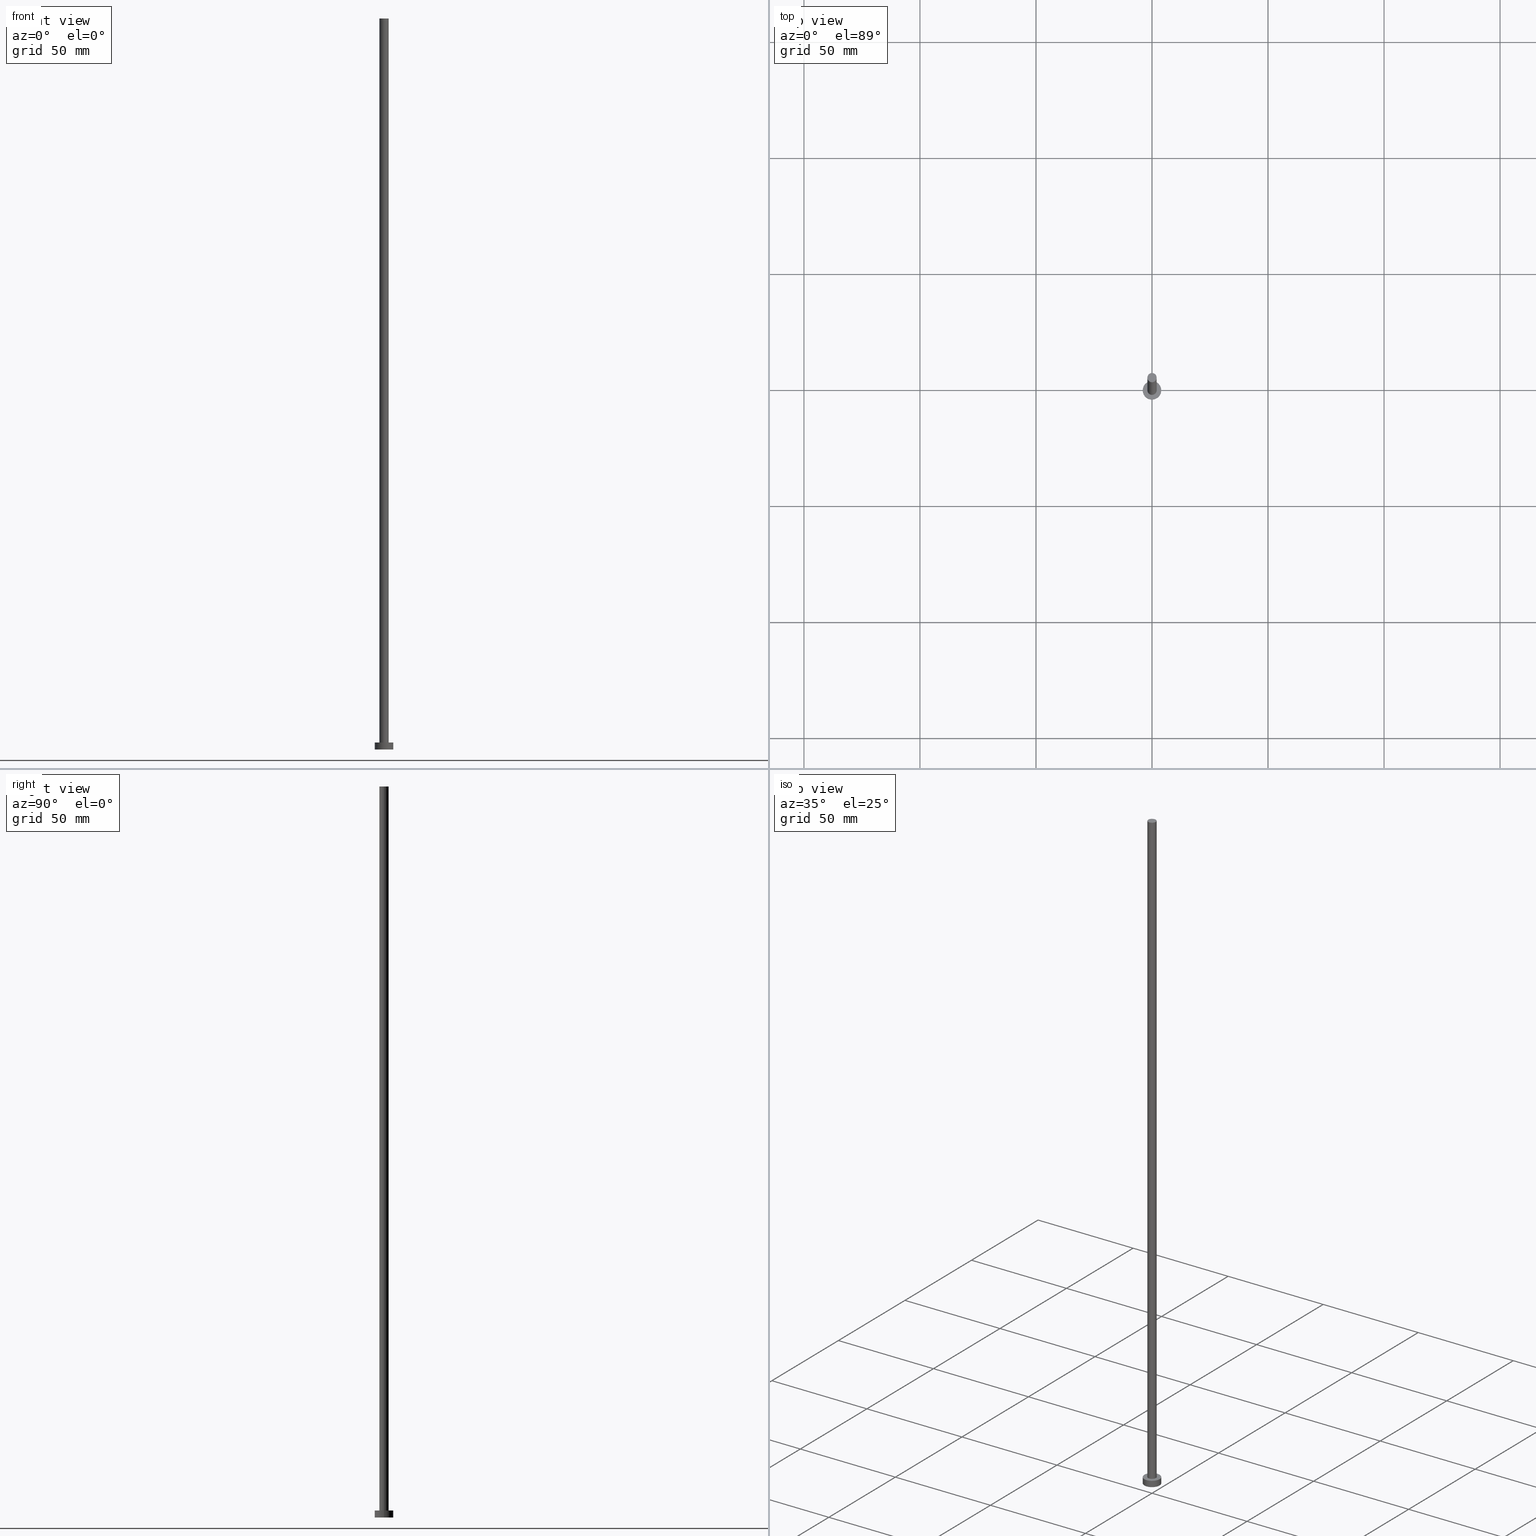
[diagram: canonical four-view strip — front | top / right | iso, engineering-drawing reading convention]
A machine part, canonical four-view strip (front | top / right | iso — engineering-drawing reading convention). The complete STEP part file that produces these views, byte-faithful:
ISO-10303-21;
HEADER;
FILE_DESCRIPTION (( 'STEP AP203' ),
    '1' );
FILE_NAME ('39f9.STEP',
    '2023-02-13T16:09:48',
    ( '' ),
    ( '' ),
    'SwSTEP 2.0',
    'SolidWorks 2019',
    '' );
FILE_SCHEMA (( 'CONFIG_CONTROL_DESIGN' ));
ENDSEC;

DATA;
#1 = CALENDAR_DATE ( 2023, 13, 2 ) ;
#2 = CARTESIAN_POINT ( 'NONE',  ( 0.000000000000000000, 0.000000000000000000, 3.000000000000000000 ) ) ;
#3 = PERSON_AND_ORGANIZATION ( #24, #228 ) ;
#4 = CARTESIAN_POINT ( 'NONE',  ( 0.000000000000000000, 0.000000000000000000, 3.000000000000000000 ) ) ;
#5 = DIRECTION ( 'NONE',  ( 0.000000000000000000, 0.000000000000000000, 1.000000000000000000 ) ) ;
#6 = APPROVAL ( #168, 'NEUR�EN�' ) ;
#7 = CARTESIAN_POINT ( 'NONE',  ( 0.000000000000000000, 0.000000000000000000, 3.000000000000000000 ) ) ;
#8 = CARTESIAN_POINT ( 'NONE',  ( 0.000000000000000000, 0.000000000000000000, 315.0000000000000000 ) ) ;
#9 = EDGE_CURVE ( 'NONE', #112, #52, #66, .T. ) ;
#10 = DIRECTION ( 'NONE',  ( 1.000000000000000000, 0.000000000000000000, -0.000000000000000000 ) ) ;
#11 = CALENDAR_DATE ( 2023, 13, 2 ) ;
#12 = VECTOR ( 'NONE', #60, 1000.000000000000000 ) ;
#13 = APPLICATION_PROTOCOL_DEFINITION ( 'international standard', 'config_control_design', 1994, #145 ) ;
#14 = EDGE_LOOP ( 'NONE', ( #111, #196, #132, #188 ) ) ;
#15 = EDGE_CURVE ( 'NONE', #247, #90, #146, .T. ) ;
#16 = PERSON_AND_ORGANIZATION ( #24, #228 ) ;
#17 = CARTESIAN_POINT ( 'NONE',  ( 0.000000000000000000, 0.000000000000000000, 315.0000000000000000 ) ) ;
#18 = APPROVAL_ROLE ( '' ) ;
#19 = EDGE_CURVE ( 'NONE', #83, #247, #175, .T. ) ;
#20 = PLANE ( 'NONE',  #187 ) ;
#21 = CARTESIAN_POINT ( 'NONE',  ( 2.000000000000000000, 2.449293598294706414E-16, 315.0000000000000000 ) ) ;
#22 = DIRECTION ( 'NONE',  ( -0.000000000000000000, -0.000000000000000000, -1.000000000000000000 ) ) ;
#23 = AXIS2_PLACEMENT_3D ( 'NONE', #8, #162, #101 ) ;
#24 = PERSON ( 'NEUR�EN�', 'NEUR�EN�', 'NEUR�EN�', ('NEUR�EN�'), ('NEUR�EN�'), ('NEUR�EN�') ) ;
#25 = DIRECTION ( 'NONE',  ( -0.000000000000000000, -0.000000000000000000, -1.000000000000000000 ) ) ;
#26 = DIRECTION ( 'NONE',  ( -1.000000000000000000, 0.000000000000000000, 0.000000000000000000 ) ) ;
#27 = FACE_OUTER_BOUND ( 'NONE', #157, .T. ) ;
#28 = CC_DESIGN_PERSON_AND_ORGANIZATION_ASSIGNMENT ( #166, #51, ( #124 ) ) ;
#29 = AXIS2_PLACEMENT_3D ( 'NONE', #154, #156, #63 ) ;
#30 = DATE_AND_TIME ( #48, #50 ) ;
#31 = COORDINATED_UNIVERSAL_TIME_OFFSET ( 1, 0, .AHEAD. ) ;
#32 = APPLICATION_PROTOCOL_DEFINITION ( 'international standard', 'config_control_design', 1994, #43 ) ;
#33 = EDGE_CURVE ( 'NONE', #112, #113, #216, .T. ) ;
#34 = CALENDAR_DATE ( 2023, 13, 2 ) ;
#35 = CIRCLE ( 'NONE', #180, 4.000000000000000000 ) ;
#36 = CARTESIAN_POINT ( 'NONE',  ( -2.000000000000000000, 0.000000000000000000, 3.000000000000000000 ) ) ;
#37 = SECURITY_CLASSIFICATION ( '', '', #136 ) ;
#38 = COORDINATED_UNIVERSAL_TIME_OFFSET ( 1, 0, .AHEAD. ) ;
#39 = ORIENTED_EDGE ( 'NONE', *, *, #9, .T. ) ;
#40 = CYLINDRICAL_SURFACE ( 'NONE', #95, 4.000000000000000000 ) ;
#41 = CC_DESIGN_PERSON_AND_ORGANIZATION_ASSIGNMENT ( #177, #133, ( #119 ) ) ;
#42 = CIRCLE ( 'NONE', #204, 2.000000000000000000 ) ;
#43 = APPLICATION_CONTEXT ( 'configuration controlled 3d designs of mechanical parts and assemblies' ) ;
#44 = AXIS2_PLACEMENT_3D ( 'NONE', #17, #194, #215 ) ;
#45 = LOCAL_TIME ( 17, 9, 48.00000000000000000, #87 ) ;
#46 = CARTESIAN_POINT ( 'NONE',  ( 0.000000000000000000, 0.000000000000000000, 315.0000000000000000 ) ) ;
#47 = PRODUCT ( '39f9', '39f9', '', ( #105 ) ) ;
#48 = CALENDAR_DATE ( 2023, 13, 2 ) ;
#49 = PERSON_AND_ORGANIZATION ( #24, #228 ) ;
#50 = LOCAL_TIME ( 17, 9, 48.00000000000000000, #128 ) ;
#51 = PERSON_AND_ORGANIZATION_ROLE ( 'creator' ) ;
#52 = VERTEX_POINT ( 'NONE', #159 ) ;
#53 = APPROVAL_STATUS ( 'not_yet_approved' ) ;
#54 = CIRCLE ( 'NONE', #183, 4.000000000000000000 ) ;
#55 = ORIENTED_EDGE ( 'NONE', *, *, #57, .T. ) ;
#56 = APPROVAL_PERSON_ORGANIZATION ( #16, #84, #226 ) ;
#57 = EDGE_CURVE ( 'NONE', #113, #149, #35, .T. ) ;
#58 = DIRECTION ( 'NONE',  ( 1.000000000000000000, 0.000000000000000000, 0.000000000000000000 ) ) ;
#59 = FACE_OUTER_BOUND ( 'NONE', #233, .T. ) ;
#60 = DIRECTION ( 'NONE',  ( -0.000000000000000000, -0.000000000000000000, -1.000000000000000000 ) ) ;
#61 = SHAPE_DEFINITION_REPRESENTATION ( #103, #121 ) ;
#62 = DIRECTION ( 'NONE',  ( -0.000000000000000000, -0.000000000000000000, -1.000000000000000000 ) ) ;
#63 = DIRECTION ( 'NONE',  ( 1.000000000000000000, 0.000000000000000000, 0.000000000000000000 ) ) ;
#64 = FACE_OUTER_BOUND ( 'NONE', #178, .T. ) ;
#65 = CC_DESIGN_DATE_AND_TIME_ASSIGNMENT ( #77, #234, ( #37 ) ) ;
#66 = CIRCLE ( 'NONE', #192, 4.000000000000000000 ) ;
#67 = APPROVAL_PERSON_ORGANIZATION ( #72, #6, #222 ) ;
#68 = FACE_OUTER_BOUND ( 'NONE', #14, .T. ) ;
#69 = DATE_AND_TIME ( #242, #45 ) ;
#70 = CC_DESIGN_PERSON_AND_ORGANIZATION_ASSIGNMENT ( #172, #210, ( #37 ) ) ;
#71 = ORIENTED_EDGE ( 'NONE', *, *, #57, .F. ) ;
#72 = PERSON_AND_ORGANIZATION ( #24, #228 ) ;
#73 = CARTESIAN_POINT ( 'NONE',  ( 2.000000000000000000, 2.449293598294706414E-16, 3.000000000000000000 ) ) ;
#74 =( LENGTH_UNIT ( ) NAMED_UNIT ( * ) SI_UNIT ( .MILLI., .METRE. ) );
#75 = EDGE_CURVE ( 'NONE', #90, #247, #96, .T. ) ;
#76 = DIRECTION ( 'NONE',  ( 0.000000000000000000, 0.000000000000000000, 1.000000000000000000 ) ) ;
#77 = DATE_AND_TIME ( #34, #182 ) ;
#78 = ORIENTED_EDGE ( 'NONE', *, *, #75, .F. ) ;
#79 = CC_DESIGN_PERSON_AND_ORGANIZATION_ASSIGNMENT ( #185, #208, ( #47 ) ) ;
#80 = APPROVAL_DATE_TIME ( #253, #181 ) ;
#81 = DIRECTION ( 'NONE',  ( 1.000000000000000000, 0.000000000000000000, 0.000000000000000000 ) ) ;
#82 = AXIS2_PLACEMENT_3D ( 'NONE', #225, #150, #206 ) ;
#83 = VERTEX_POINT ( 'NONE', #21 ) ;
#84 = APPROVAL ( #53, 'NEUR�EN�' ) ;
#85 = CC_DESIGN_SECURITY_CLASSIFICATION ( #37, ( #119 ) ) ;
#86 = FACE_BOUND ( 'NONE', #251, .T. ) ;
#87 = COORDINATED_UNIVERSAL_TIME_OFFSET ( 1, 0, .AHEAD. ) ;
#88 = APPROVAL_DATE_TIME ( #30, #84 ) ;
#89 =( NAMED_UNIT ( * ) SI_UNIT ( $, .STERADIAN. ) SOLID_ANGLE_UNIT ( ) );
#90 = VERTEX_POINT ( 'NONE', #36 ) ;
#91 = FACE_OUTER_BOUND ( 'NONE', #249, .T. ) ;
#92 = CC_DESIGN_APPROVAL ( #6, ( #119 ) ) ;
#93 = CARTESIAN_POINT ( 'NONE',  ( 2.000000000000000000, 2.449293598294706414E-16, 315.0000000000000000 ) ) ;
#94 = ORIENTED_EDGE ( 'NONE', *, *, #115, .T. ) ;
#95 = AXIS2_PLACEMENT_3D ( 'NONE', #4, #173, #232 ) ;
#96 = CIRCLE ( 'NONE', #212, 2.000000000000000000 ) ;
#97 = CARTESIAN_POINT ( 'NONE',  ( 4.000000000000000000, 4.898587196589412829E-16, 0.000000000000000000 ) ) ;
#98 =( GEOMETRIC_REPRESENTATION_CONTEXT ( 3 ) GLOBAL_UNCERTAINTY_ASSIGNED_CONTEXT ( ( #245 ) ) GLOBAL_UNIT_ASSIGNED_CONTEXT ( ( #74, #189, #89 ) ) REPRESENTATION_CONTEXT ( 'NONE', 'WORKASPACE' ) );
#99 = CARTESIAN_POINT ( 'NONE',  ( -2.000000000000000000, 0.000000000000000000, 315.0000000000000000 ) ) ;
#100 = EDGE_CURVE ( 'NONE', #52, #149, #114, .T. ) ;
#101 = DIRECTION ( 'NONE',  ( 1.000000000000000000, 0.000000000000000000, 0.000000000000000000 ) ) ;
#102 = VECTOR ( 'NONE', #22, 1000.000000000000000 ) ;
#103 = PRODUCT_DEFINITION_SHAPE ( 'NONE', 'NONE',  #124 ) ;
#104 = CARTESIAN_POINT ( 'NONE',  ( 0.000000000000000000, 0.000000000000000000, 3.000000000000000000 ) ) ;
#105 = MECHANICAL_CONTEXT ( 'NONE', #43, 'mechanical' ) ;
#106 = PLANE ( 'NONE',  #147 ) ;
#107 = ORIENTED_EDGE ( 'NONE', *, *, #75, .T. ) ;
#108 = CARTESIAN_POINT ( 'NONE',  ( -2.000000000000000000, 0.000000000000000000, 315.0000000000000000 ) ) ;
#109 = ORIENTED_EDGE ( 'NONE', *, *, #33, .F. ) ;
#110 = CARTESIAN_POINT ( 'NONE',  ( -4.000000000000000000, 0.000000000000000000, 3.000000000000000000 ) ) ;
#111 = ORIENTED_EDGE ( 'NONE', *, *, #191, .F. ) ;
#112 = VERTEX_POINT ( 'NONE', #139 ) ;
#113 = VERTEX_POINT ( 'NONE', #97 ) ;
#114 = LINE ( 'NONE', #110, #102 ) ;
#115 = EDGE_CURVE ( 'NONE', #235, #90, #197, .T. ) ;
#116 = PLANE ( 'NONE',  #142 ) ;
#117 = DIRECTION ( 'NONE',  ( 1.000000000000000000, 0.000000000000000000, -0.000000000000000000 ) ) ;
#118 = ADVANCED_FACE ( 'NONE', ( #176 ), #138, .T. ) ;
#119 = PRODUCT_DEFINITION_FORMATION_WITH_SPECIFIED_SOURCE ( 'LIBOVOLN�', '', #47, .NOT_KNOWN. ) ;
#120 = CYLINDRICAL_SURFACE ( 'NONE', #152, 4.000000000000000000 ) ;
#121 = ADVANCED_BREP_SHAPE_REPRESENTATION ( '39f9', ( #220, #82 ), #98 ) ;
#122 = CARTESIAN_POINT ( 'NONE',  ( 0.000000000000000000, 0.000000000000000000, 315.0000000000000000 ) ) ;
#123 = DIRECTION ( 'NONE',  ( 1.000000000000000000, 0.000000000000000000, 0.000000000000000000 ) ) ;
#124 = PRODUCT_DEFINITION ( 'NEZN�M�', '', #119, #202 ) ;
#125 = DATE_AND_TIME ( #11, #238 ) ;
#126 = FACE_OUTER_BOUND ( 'NONE', #151, .T. ) ;
#127 = ORIENTED_EDGE ( 'NONE', *, *, #191, .T. ) ;
#128 = COORDINATED_UNIVERSAL_TIME_OFFSET ( 1, 0, .AHEAD. ) ;
#129 = CIRCLE ( 'NONE', #23, 2.000000000000000000 ) ;
#130 = CC_DESIGN_APPROVAL ( #84, ( #124 ) ) ;
#131 = ORIENTED_EDGE ( 'NONE', *, *, #9, .F. ) ;
#132 = ORIENTED_EDGE ( 'NONE', *, *, #15, .T. ) ;
#133 = PERSON_AND_ORGANIZATION_ROLE ( 'design_supplier' ) ;
#134 = DIRECTION ( 'NONE',  ( 1.000000000000000000, 0.000000000000000000, 0.000000000000000000 ) ) ;
#135 = ADVANCED_FACE ( 'NONE', ( #91 ), #40, .T. ) ;
#136 = SECURITY_CLASSIFICATION_LEVEL ( 'unclassified' ) ;
#137 = AXIS2_PLACEMENT_3D ( 'NONE', #250, #184, #123 ) ;
#138 = CYLINDRICAL_SURFACE ( 'NONE', #44, 2.000000000000000000 ) ;
#139 = CARTESIAN_POINT ( 'NONE',  ( 4.000000000000000000, 4.898587196589412829E-16, 3.000000000000000000 ) ) ;
#140 = EDGE_CURVE ( 'NONE', #149, #113, #54, .T. ) ;
#141 = ORIENTED_EDGE ( 'NONE', *, *, #140, .T. ) ;
#142 = AXIS2_PLACEMENT_3D ( 'NONE', #7, #201, #117 ) ;
#143 = AXIS2_PLACEMENT_3D ( 'NONE', #144, #179, #26 ) ;
#144 = CARTESIAN_POINT ( 'NONE',  ( 0.000000000000000000, 0.000000000000000000, 315.0000000000000000 ) ) ;
#145 = APPLICATION_CONTEXT ( 'configuration controlled 3d designs of mechanical parts and assemblies' ) ;
#146 = CIRCLE ( 'NONE', #29, 2.000000000000000000 ) ;
#147 = AXIS2_PLACEMENT_3D ( 'NONE', #203, #205, #10 ) ;
#148 = PERSON_AND_ORGANIZATION_ROLE ( 'creator' ) ;
#149 = VERTEX_POINT ( 'NONE', #230 ) ;
#150 = DIRECTION ( 'NONE',  ( 0.000000000000000000, 0.000000000000000000, 1.000000000000000000 ) ) ;
#151 = EDGE_LOOP ( 'NONE', ( #160, #71 ) ) ;
#152 = AXIS2_PLACEMENT_3D ( 'NONE', #104, #169, #171 ) ;
#153 = ORIENTED_EDGE ( 'NONE', *, *, #19, .F. ) ;
#154 = CARTESIAN_POINT ( 'NONE',  ( 0.000000000000000000, 0.000000000000000000, 3.000000000000000000 ) ) ;
#155 = CC_DESIGN_PERSON_AND_ORGANIZATION_ASSIGNMENT ( #49, #148, ( #119 ) ) ;
#156 = DIRECTION ( 'NONE',  ( 0.000000000000000000, 0.000000000000000000, 1.000000000000000000 ) ) ;
#157 = EDGE_LOOP ( 'NONE', ( #224, #39 ) ) ;
#158 = APPROVAL_STATUS ( 'not_yet_approved' ) ;
#159 = CARTESIAN_POINT ( 'NONE',  ( -4.000000000000000000, 0.000000000000000000, 3.000000000000000000 ) ) ;
#160 = ORIENTED_EDGE ( 'NONE', *, *, #140, .F. ) ;
#161 = VECTOR ( 'NONE', #25, 1000.000000000000000 ) ;
#162 = DIRECTION ( 'NONE',  ( 0.000000000000000000, 0.000000000000000000, 1.000000000000000000 ) ) ;
#163 = CIRCLE ( 'NONE', #137, 4.000000000000000000 ) ;
#164 = ADVANCED_FACE ( 'NONE', ( #59 ), #20, .T. ) ;
#165 = DIRECTION ( 'NONE',  ( 1.000000000000000000, 0.000000000000000000, 0.000000000000000000 ) ) ;
#166 = PERSON_AND_ORGANIZATION ( #24, #228 ) ;
#167 = EDGE_CURVE ( 'NONE', #235, #83, #129, .T. ) ;
#168 = APPROVAL_STATUS ( 'not_yet_approved' ) ;
#169 = DIRECTION ( 'NONE',  ( -0.000000000000000000, -0.000000000000000000, -1.000000000000000000 ) ) ;
#170 = EDGE_LOOP ( 'NONE', ( #153, #211, #94, #107 ) ) ;
#171 = DIRECTION ( 'NONE',  ( -1.000000000000000000, 0.000000000000000000, 0.000000000000000000 ) ) ;
#172 = PERSON_AND_ORGANIZATION ( #24, #228 ) ;
#173 = DIRECTION ( 'NONE',  ( -0.000000000000000000, -0.000000000000000000, -1.000000000000000000 ) ) ;
#174 = DIRECTION ( 'NONE',  ( 0.000000000000000000, 0.000000000000000000, 1.000000000000000000 ) ) ;
#175 = LINE ( 'NONE', #93, #161 ) ;
#176 = FACE_OUTER_BOUND ( 'NONE', #170, .T. ) ;
#177 = PERSON_AND_ORGANIZATION ( #24, #228 ) ;
#178 = EDGE_LOOP ( 'NONE', ( #131, #209, #55, #190 ) ) ;
#179 = DIRECTION ( 'NONE',  ( -0.000000000000000000, -0.000000000000000000, -1.000000000000000000 ) ) ;
#180 = AXIS2_PLACEMENT_3D ( 'NONE', #195, #174, #81 ) ;
#181 = APPROVAL ( #158, 'NEUR�EN�' ) ;
#182 = LOCAL_TIME ( 17, 9, 48.00000000000000000, #193 ) ;
#183 = AXIS2_PLACEMENT_3D ( 'NONE', #254, #76, #58 ) ;
#184 = DIRECTION ( 'NONE',  ( 0.000000000000000000, 0.000000000000000000, 1.000000000000000000 ) ) ;
#185 = PERSON_AND_ORGANIZATION ( #24, #228 ) ;
#186 = ORIENTED_EDGE ( 'NONE', *, *, #167, .T. ) ;
#187 = AXIS2_PLACEMENT_3D ( 'NONE', #46, #199, #239 ) ;
#188 = ORIENTED_EDGE ( 'NONE', *, *, #115, .F. ) ;
#189 =( NAMED_UNIT ( * ) PLANE_ANGLE_UNIT ( ) SI_UNIT ( $, .RADIAN. ) );
#190 = ORIENTED_EDGE ( 'NONE', *, *, #100, .F. ) ;
#191 = EDGE_CURVE ( 'NONE', #83, #235, #42, .T. ) ;
#192 = AXIS2_PLACEMENT_3D ( 'NONE', #2, #236, #134 ) ;
#193 = COORDINATED_UNIVERSAL_TIME_OFFSET ( 1, 0, .AHEAD. ) ;
#194 = DIRECTION ( 'NONE',  ( -0.000000000000000000, -0.000000000000000000, -1.000000000000000000 ) ) ;
#195 = CARTESIAN_POINT ( 'NONE',  ( 0.000000000000000000, 0.000000000000000000, 0.000000000000000000 ) ) ;
#196 = ORIENTED_EDGE ( 'NONE', *, *, #19, .T. ) ;
#197 = LINE ( 'NONE', #99, #12 ) ;
#198 = APPROVAL_PERSON_ORGANIZATION ( #3, #181, #18 ) ;
#199 = DIRECTION ( 'NONE',  ( 0.000000000000000000, 0.000000000000000000, 1.000000000000000000 ) ) ;
#200 = CC_DESIGN_DATE_AND_TIME_ASSIGNMENT ( #69, #248, ( #124 ) ) ;
#201 = DIRECTION ( 'NONE',  ( 0.000000000000000000, 0.000000000000000000, 1.000000000000000000 ) ) ;
#202 = DESIGN_CONTEXT ( 'detailed design', #145, 'design' ) ;
#203 = CARTESIAN_POINT ( 'NONE',  ( 0.000000000000000000, 0.000000000000000000, 0.000000000000000000 ) ) ;
#204 = AXIS2_PLACEMENT_3D ( 'NONE', #122, #241, #165 ) ;
#205 = DIRECTION ( 'NONE',  ( 0.000000000000000000, 0.000000000000000000, 1.000000000000000000 ) ) ;
#206 = DIRECTION ( 'NONE',  ( 1.000000000000000000, 0.000000000000000000, 0.000000000000000000 ) ) ;
#207 = CLOSED_SHELL ( 'NONE', ( #221, #223, #135, #218, #243, #118, #164 ) ) ;
#208 = PERSON_AND_ORGANIZATION_ROLE ( 'design_owner' ) ;
#209 = ORIENTED_EDGE ( 'NONE', *, *, #33, .T. ) ;
#210 = PERSON_AND_ORGANIZATION_ROLE ( 'classification_officer' ) ;
#211 = ORIENTED_EDGE ( 'NONE', *, *, #167, .F. ) ;
#212 = AXIS2_PLACEMENT_3D ( 'NONE', #217, #5, #255 ) ;
#213 = LOCAL_TIME ( 17, 9, 48.00000000000000000, #38 ) ;
#214 = CARTESIAN_POINT ( 'NONE',  ( 4.000000000000000000, 4.898587196589412829E-16, 3.000000000000000000 ) ) ;
#215 = DIRECTION ( 'NONE',  ( -1.000000000000000000, 0.000000000000000000, 0.000000000000000000 ) ) ;
#216 = LINE ( 'NONE', #214, #237 ) ;
#217 = CARTESIAN_POINT ( 'NONE',  ( 0.000000000000000000, 0.000000000000000000, 3.000000000000000000 ) ) ;
#218 = ADVANCED_FACE ( 'NONE', ( #86, #27 ), #116, .T. ) ;
#219 = CYLINDRICAL_SURFACE ( 'NONE', #143, 2.000000000000000000 ) ;
#220 = MANIFOLD_SOLID_BREP ( 'P�idat vysunut�m3', #207 ) ;
#221 = ADVANCED_FACE ( 'NONE', ( #68 ), #219, .T. ) ;
#222 = APPROVAL_ROLE ( '' ) ;
#223 = ADVANCED_FACE ( 'NONE', ( #64 ), #120, .T. ) ;
#224 = ORIENTED_EDGE ( 'NONE', *, *, #240, .T. ) ;
#225 = CARTESIAN_POINT ( 'NONE',  ( 0.000000000000000000, 0.000000000000000000, 0.000000000000000000 ) ) ;
#226 = APPROVAL_ROLE ( '' ) ;
#227 = ORIENTED_EDGE ( 'NONE', *, *, #100, .T. ) ;
#228 = ORGANIZATION ( 'NEUR�EN�', 'NEUR�EN�', '' ) ;
#229 = ORIENTED_EDGE ( 'NONE', *, *, #240, .F. ) ;
#230 = CARTESIAN_POINT ( 'NONE',  ( -4.000000000000000000, 0.000000000000000000, 0.000000000000000000 ) ) ;
#231 = PRODUCT_RELATED_PRODUCT_CATEGORY ( 'detail', '', ( #47 ) ) ;
#232 = DIRECTION ( 'NONE',  ( -1.000000000000000000, 0.000000000000000000, 0.000000000000000000 ) ) ;
#233 = EDGE_LOOP ( 'NONE', ( #186, #127 ) ) ;
#234 = DATE_TIME_ROLE ( 'classification_date' ) ;
#235 = VERTEX_POINT ( 'NONE', #108 ) ;
#236 = DIRECTION ( 'NONE',  ( 0.000000000000000000, 0.000000000000000000, 1.000000000000000000 ) ) ;
#237 = VECTOR ( 'NONE', #62, 1000.000000000000000 ) ;
#238 = LOCAL_TIME ( 17, 9, 48.00000000000000000, #31 ) ;
#239 = DIRECTION ( 'NONE',  ( 1.000000000000000000, 0.000000000000000000, -0.000000000000000000 ) ) ;
#240 = EDGE_CURVE ( 'NONE', #52, #112, #163, .T. ) ;
#241 = DIRECTION ( 'NONE',  ( 0.000000000000000000, 0.000000000000000000, 1.000000000000000000 ) ) ;
#242 = CALENDAR_DATE ( 2023, 13, 2 ) ;
#243 = ADVANCED_FACE ( 'NONE', ( #126 ), #106, .F. ) ;
#244 = ORIENTED_EDGE ( 'NONE', *, *, #15, .F. ) ;
#245 = UNCERTAINTY_MEASURE_WITH_UNIT (LENGTH_MEASURE( 1.000000000000000082E-05 ), #74, 'distance_accuracy_value', 'NONE');
#246 = APPROVAL_DATE_TIME ( #125, #6 ) ;
#247 = VERTEX_POINT ( 'NONE', #73 ) ;
#248 = DATE_TIME_ROLE ( 'creation_date' ) ;
#249 = EDGE_LOOP ( 'NONE', ( #109, #229, #227, #141 ) ) ;
#250 = CARTESIAN_POINT ( 'NONE',  ( 0.000000000000000000, 0.000000000000000000, 3.000000000000000000 ) ) ;
#251 = EDGE_LOOP ( 'NONE', ( #78, #244 ) ) ;
#252 = CC_DESIGN_APPROVAL ( #181, ( #37 ) ) ;
#253 = DATE_AND_TIME ( #1, #213 ) ;
#254 = CARTESIAN_POINT ( 'NONE',  ( 0.000000000000000000, 0.000000000000000000, 0.000000000000000000 ) ) ;
#255 = DIRECTION ( 'NONE',  ( 1.000000000000000000, 0.000000000000000000, 0.000000000000000000 ) ) ;
ENDSEC;
END-ISO-10303-21;
